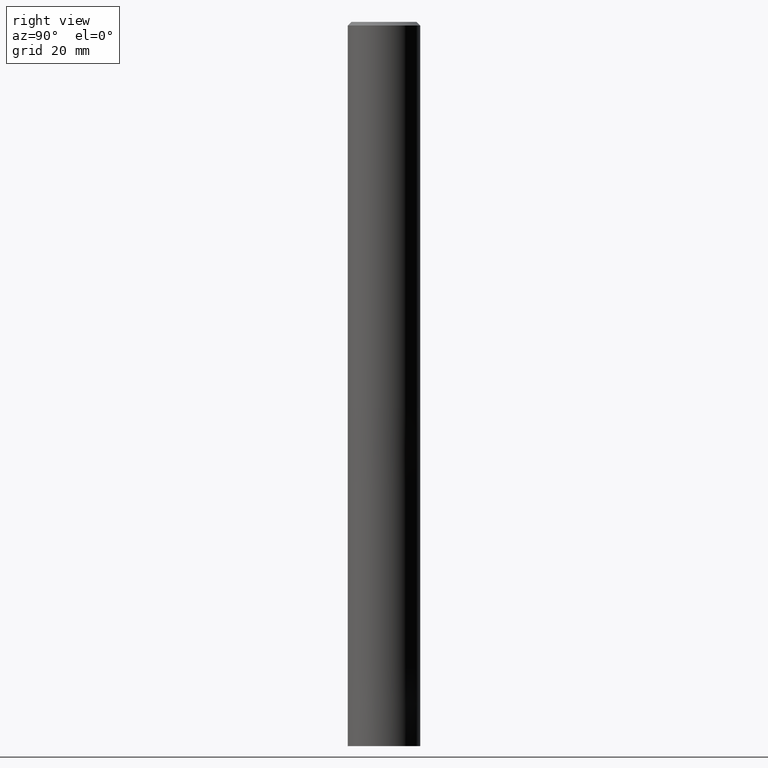
[diagram: clean part render]
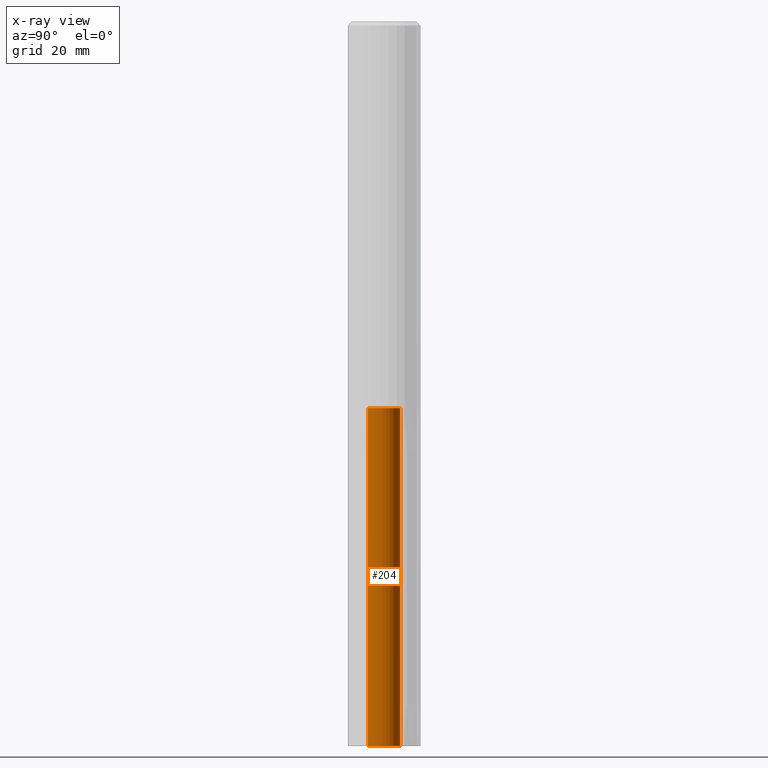
[diagram: x-ray — body ghosted, one internal face saturated and labeled with its STEP entity id]
A machine part, right view, then the same camera in x-ray: the body is ghosted and one INTERNAL B-rep face — a face not visible from any outside direction — is saturated and labeled: STEP entity #204.
In plain terms, the highlighted cylindrical surface (edge-blend (fillet) strip) has radius 2.7 mm, axis along (-0, -0, 1).
Its self-contained STEP definition (entity closure, byte-faithful):
#96=EDGE_CURVE('',#120,#156,#241,.T.);
#102=VERTEX_POINT('',#247);
#118=VERTEX_POINT('',#268);
#120=VERTEX_POINT('',#270);
#144=EDGE_CURVE('',#102,#156,#299,.T.);
#156=VERTEX_POINT('',#312);
#174=EDGE_CURVE('',#102,#118,#331,.T.);
#182=EDGE_CURVE('',#118,#120,#340,.T.);
#204=ADVANCED_FACE('',(#365),#366,.F.);
#241=LINE('',#397,#398);
#247=CARTESIAN_POINT('',(0.0,2.7,-64.0));
#268=CARTESIAN_POINT('',(0.0,2.7,-120.0));
#270=CARTESIAN_POINT('',(3.30643715532042E-016,-2.7,-120.0));
#299=CIRCLE('',#465,2.7);
#312=CARTESIAN_POINT('',(3.30643715532042E-016,-2.7,-64.0));
#331=LINE('',#502,#503);
#340=CIRCLE('',#514,2.7);
#365=FACE_OUTER_BOUND('',#548,.T.);
#366=CYLINDRICAL_SURFACE('',#549,2.7);
#397=CARTESIAN_POINT('',(3.30643715532042E-016,-2.7,-92.0));
#398=VECTOR('',#576,1.0);
#465=AXIS2_PLACEMENT_3D('',#651,#652,#653);
#502=CARTESIAN_POINT('',(-3.30643715532042E-016,2.7,-92.0));
#503=VECTOR('',#686,1.0);
#514=AXIS2_PLACEMENT_3D('',#698,#699,#700);
#548=EDGE_LOOP('',(#731,#732,#733,#734));
#549=AXIS2_PLACEMENT_3D('',#735,#736,#737);
#576=DIRECTION('',(0.0,-0.0,1.0));
#651=CARTESIAN_POINT('',(0.0,0.0,-64.0));
#652=DIRECTION('',(0.0,0.0,-1.0));
#653=DIRECTION('',(0.0,1.0,0.0));
#686=DIRECTION('',(0.0,-0.0,-1.0));
#698=CARTESIAN_POINT('',(0.0,0.0,-120.0));
#699=DIRECTION('',(0.0,0.0,-1.0));
#700=DIRECTION('',(0.0,1.0,0.0));
#731=ORIENTED_EDGE('',*,*,#174,.T.);
#732=ORIENTED_EDGE('',*,*,#182,.T.);
#733=ORIENTED_EDGE('',*,*,#96,.T.);
#734=ORIENTED_EDGE('',*,*,#144,.F.);
#735=CARTESIAN_POINT('',(0.0,0.0,-92.0));
#736=DIRECTION('',(-0.0,-0.0,1.0));
#737=DIRECTION('',(0.0,1.0,0.0));